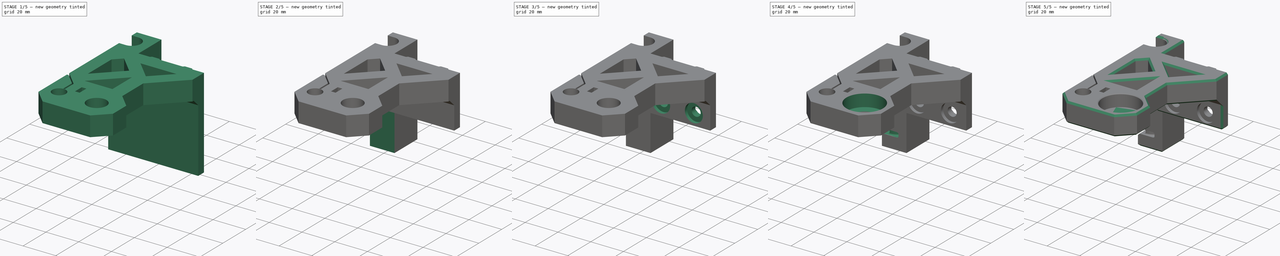
[diagram: build sequence overview — one tinted view per stage of 5, left to right]
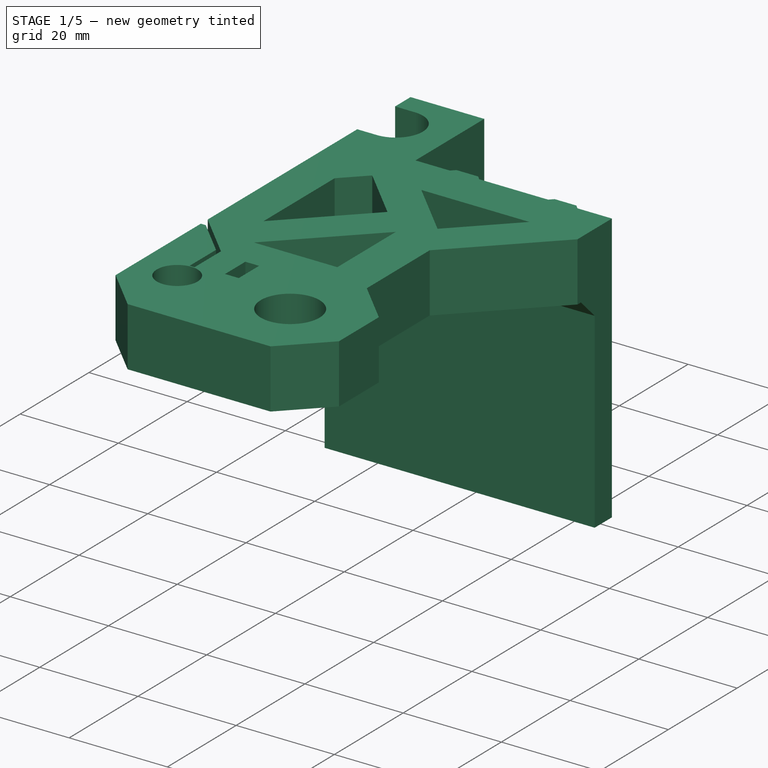
[diagram: stage 1 of 5 — iso view after this stage's code; geometry added in this stage tinted green]
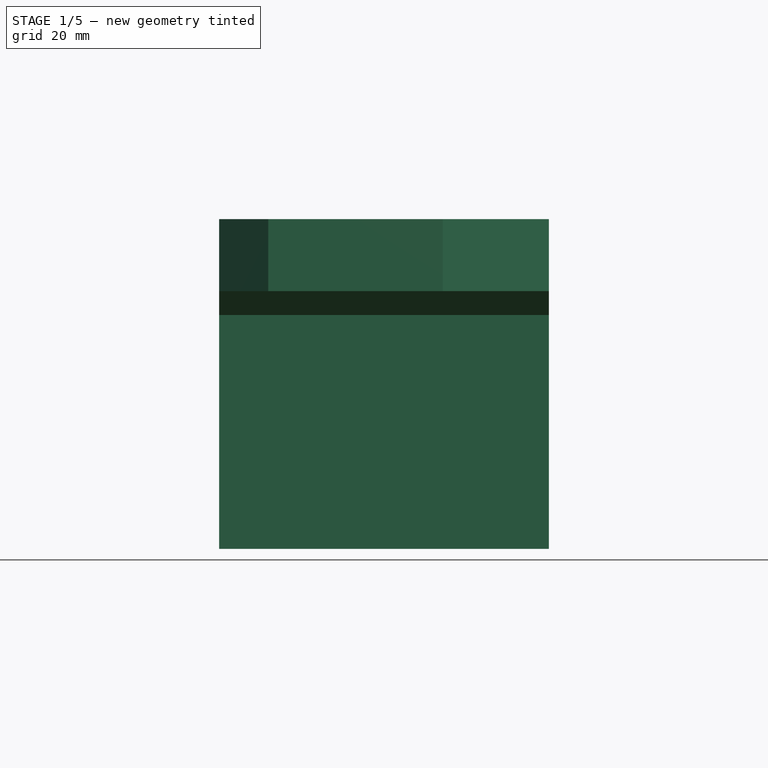
[diagram: stage 1 of 5 — front view after this stage's code; geometry added in this stage tinted green]
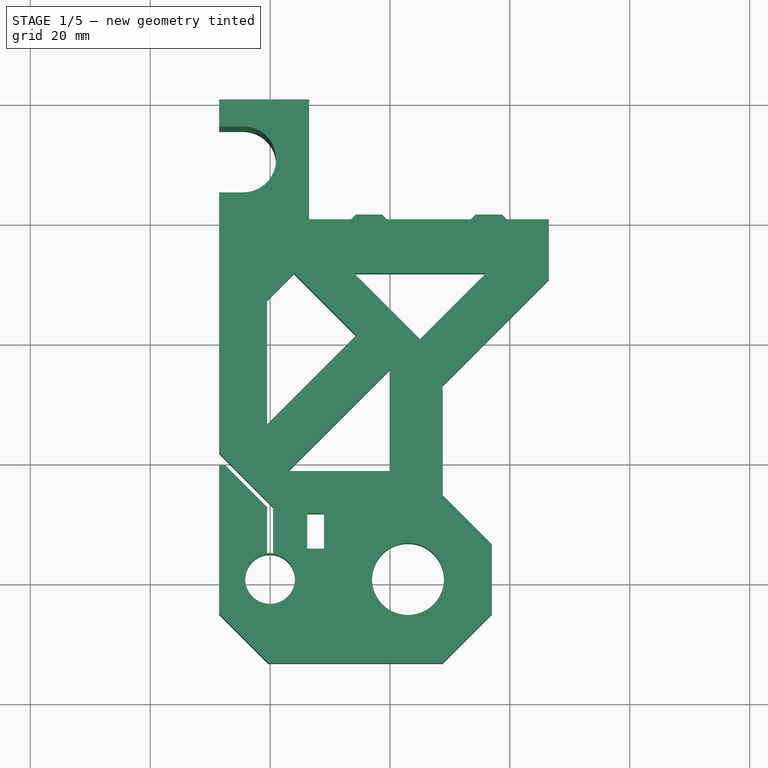
[diagram: stage 1 of 5 — top view after this stage's code; geometry added in this stage tinted green]
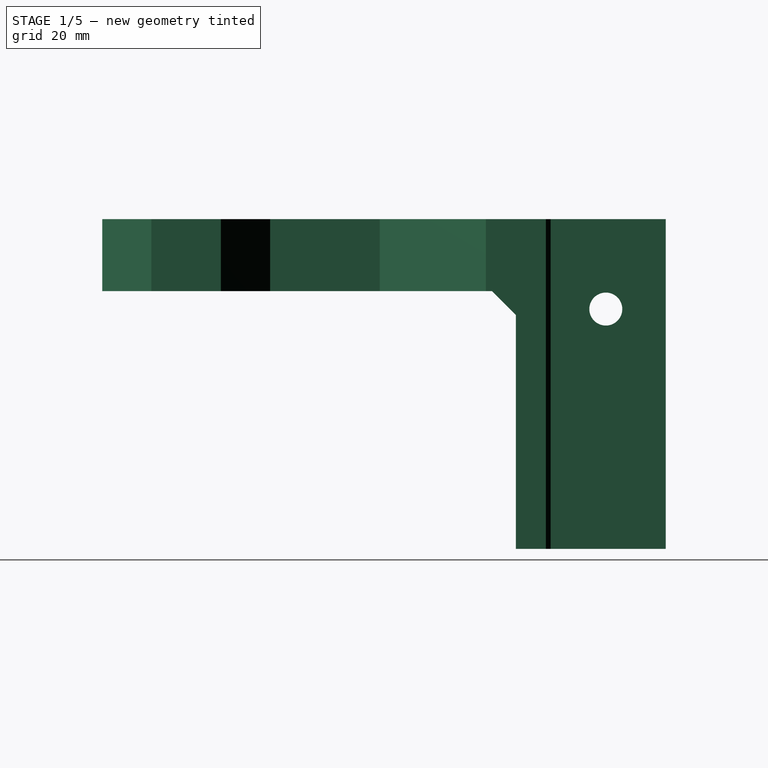
[diagram: stage 1 of 5 — right view after this stage's code; geometry added in this stage tinted green]
FCSTD DOCUMENT  (FreeCAD 0.19R24276 (Git))
Label: _Z_Rod_Holder_L
License: All rights reserved
LicenseURL: http://en.wikipedia.org/wiki/All_rights_reserved
objects: Sketcher::SketchObject×15, PartDesign::Pocket×10, PartDesign::Pad×2, PartDesign::Chamfer×2, PartDesign::Hole×1, PartDesign::SubtractivePipe×1, PartDesign::LinearPattern×1, PartDesign::Body×1
note: 49 computed .brp shape members not serialized (recipe doc carries the construction recipe); baked Part::Feature solids carry a one-line shape summary decoded from their .brp

FEATURE [Sketcher::SketchObject] Sketch
  FullyConstrained = true
  MapMode = 5
  Support = -> [XY_Plane]
  expr: Constraints[85] = Constraints[84] / 2 + 0.2mm
  sketch-geometry (43):
    g0: Circle CenterX=23 CenterY=0 CenterZ=0 NormalX=0 NormalY=0 NormalZ=1 AngleXU=0 Radius=6
    g1: Circle CenterX=23 CenterY=0 CenterZ=0 NormalX=0 NormalY=0 NormalZ=1 AngleXU=0 Radius=14
    g2: LineSegment StartX=-8.5 StartY=-5.79899 StartZ=0 EndX=-0.29899 EndY=-14 EndZ=0
    g3: LineSegment StartX=-0.29899 StartY=-14 StartZ=0 EndX=28.799 EndY=-14 EndZ=0
    g4: LineSegment StartX=28.799 StartY=-14 StartZ=0 EndX=37 EndY=-5.79899 EndZ=0
    g5: LineSegment StartX=37 StartY=-5.79899 StartZ=0 EndX=37 EndY=5.79899 EndZ=0
    g6: LineSegment StartX=37 StartY=5.79899 StartZ=0 EndX=28.799 EndY=14 EndZ=0
    g7: LineSegment StartX=28.799 StartY=32.299 StartZ=0 EndX=46.5 EndY=50 EndZ=0
    g8: LineSegment StartX=46.5 StartY=50 StartZ=0 EndX=46.5 EndY=60 EndZ=0
    g9: LineSegment StartX=46.5 StartY=60 StartZ=0 EndX=39.5 EndY=60 EndZ=0
    g10: LineSegment StartX=6.5 StartY=60 StartZ=0 EndX=6.5 EndY=80 EndZ=0
    g11: LineSegment StartX=1.5 StartY=80 StartZ=0 EndX=1.5 EndY=60 EndZ=0
    g12: LineSegment StartX=13.5 StartY=60 StartZ=0 EndX=14.3 EndY=60.8 EndZ=0
    g13: LineSegment StartX=14.3 StartY=60.8 StartZ=0 EndX=18.7 EndY=60.8 EndZ=0
    g14: LineSegment StartX=18.7 StartY=60.8 StartZ=0 EndX=19.5 EndY=60 EndZ=0
    g15: LineSegment StartX=33.5 StartY=60 StartZ=0 EndX=34.3 EndY=60.8 EndZ=0
    g16: LineSegment StartX=34.3 StartY=60.8 StartZ=0 EndX=38.7 EndY=60.8 EndZ=0
    g17: LineSegment StartX=38.7 StartY=60.8 StartZ=0 EndX=39.5 EndY=60 EndZ=0
    g18: LineSegment StartX=33.5 StartY=60 StartZ=0 EndX=19.5 EndY=60 EndZ=0
    g19: LineSegment StartX=13.5 StartY=60 StartZ=0 EndX=6.5 EndY=60 EndZ=0
    g20: LineSegment StartX=13.5 StartY=60 StartZ=0 EndX=19.5 EndY=60 EndZ=0
    g21: LineSegment StartX=33.5 StartY=60 StartZ=0 EndX=39.5 EndY=60 EndZ=0
    g22: LineSegment StartX=16.5 StartY=60 StartZ=0 EndX=16.5 EndY=60.8 EndZ=0
    g23: LineSegment StartX=36.5 StartY=60 StartZ=0 EndX=36.5 EndY=60.8 EndZ=0
    g24: LineSegment StartX=0.5 StartY=4.32117 StartZ=0 EndX=0.5 EndY=12 EndZ=0
    g25: LineSegment StartX=0.5 StartY=12 StartZ=0 EndX=-8.5 EndY=21 EndZ=0
    g26: LineSegment StartX=-7.5 StartY=19 StartZ=0 EndX=-0.5 EndY=12 EndZ=0
    g27: LineSegment StartX=-0.5 StartY=12 StartZ=0 EndX=-0.5 EndY=4.32117 EndZ=0
    g28: LineSegment StartX=-8.5 StartY=19 StartZ=0 EndX=-8.5 EndY=-5.79899 EndZ=0
    g29: LineSegment StartX=-0.5 StartY=12 StartZ=0 EndX=0.5 EndY=12 EndZ=0
    g30: LineSegment StartX=-8.5 StartY=19 StartZ=0 EndX=-7.5 EndY=19 EndZ=0
    g31: LineSegment StartX=28.799 StartY=14 StartZ=0 EndX=28.799 EndY=32.299 EndZ=0
    g32: Circle CenterX=0 CenterY=0 CenterZ=0 NormalX=0 NormalY=0 NormalZ=1 AngleXU=0 Radius=4.15
    g33: ArcOfCircle CenterX=0 CenterY=0 CenterZ=0 NormalX=0 NormalY=0 NormalZ=1 AngleXU=0 Radius=4.35 StartAngle=1.4556 EndAngle=1.68599
    g34: LineSegment StartX=1.5 StartY=70 StartZ=0 EndX=-4.5 EndY=70 EndZ=0
    g35: ArcOfCircle CenterX=-4.5 CenterY=70 CenterZ=0 NormalX=0 NormalY=0 NormalZ=1 AngleXU=0 Radius=5.5 StartAngle=4.71239 EndAngle=7.85398
    g36: LineSegment StartX=-4.5 StartY=75.5 StartZ=0 EndX=-8.5 EndY=75.5 EndZ=0
    g37: LineSegment StartX=-8.5 StartY=75.5 StartZ=0 EndX=-8.5 EndY=80 EndZ=0
    g38: LineSegment StartX=-8.5 StartY=80 StartZ=0 EndX=6.5 EndY=80 EndZ=0
    g39: LineSegment StartX=-8.5 StartY=64.5 StartZ=0 EndX=-4.5 EndY=64.5 EndZ=0
    g40: LineSegment StartX=-8.5 StartY=64.5 StartZ=0 EndX=-8.5 EndY=21 EndZ=0
    g41: LineSegment StartX=-8.5 StartY=75.5 StartZ=0 EndX=-8.5 EndY=64.5 EndZ=0
    g42: LineSegment StartX=-8.5 StartY=21 StartZ=0 EndX=-8.5 EndY=19 EndZ=0
  constraints (120):
    c: PointOnObject(g0,g-1)
    c: Coincident(g1,g0)
    c: Diameter(g1) = 28
    c: Diameter(g0) = 12
    c: Coincident(g2,g3)
    c: Horizontal(g3)
    c: Coincident(g3,g4)
    c: Coincident(g4,g5)
    c: Vertical(g5)
    c: Coincident(g5,g6)
    c: Coincident(g7,g8)
    c: Vertical(g8)
    c: Coincident(g8,g9)
    c: Horizontal(g9)
    c: Coincident(g19,g10)
    c: Vertical(g10)
    c: Coincident(g28,g2)
    c: Tangent(g3,g1)
    c: Tangent(g4,g1)
    c: Tangent(g5,g1)
    c: Tangent(g6,g1)
    c: Angle(g-1,g7) = 0.785398
    c: DistanceY(g8,g8) = 10
    c: Perpendicular(g6,g7)
    c: Perpendicular(g4,g6)
    c: Perpendicular(g2,g4)
    c: Vertical(g11)
    c: DistanceX(g10,g8) = 40
    c: DistanceX(g11,g10) = 5
    c: Equal(g4,g2)
    c: Coincident(g12,g13)
    c: Coincident(g13,g14)
    c: Coincident(g15,g16)
    c: Coincident(g16,g17)
    c: Horizontal(g13)
    c: PointOnObject(g12,g9)
    c: Coincident(g9,g17)
    c: Coincident(g18,g15)
    c: Tangent(g9,g18)
    c: PointOnObject(g18,g14)
    c: PointOnObject(g19,g12)
    c: Tangent(g18,g19)
    c: Coincident(g20,g12)
    c: Coincident(g20,g14)
    c: Coincident(g21,g15)
    c: Coincident(g21,g9)
    c: PointOnObject(g22,g20)
    c: PointOnObject(g22,g13)
    c: PointOnObject(g23,g21)
    c: PointOnObject(g23,g16)
    c: Symmetric(g12,g14,g22)
    c: Symmetric(g12,g13,g22)
    c: Symmetric(g15,g9,g23)
    c: Symmetric(g16,g15,g23)
    c: Equal(g22,g23)
    c: Equal(g20,g21)
    c: Perpendicular(g14,g12)
    c: Perpendicular(g17,g15)
    c: DistanceX(g20,g20) = 6
    c: DistanceY(g22,g22) = 0.8
    c: DistanceX(g10,g22) = 10
    c: DistanceX(g22,g23) = 20
    c: Vertical(g24)
    c: Coincident(g24,g25)
    c: Coincident(g26,g27)
    c: Vertical(g27)
    c: Coincident(g29,g26)
    c: Coincident(g29,g24)
    c: Parallel(g25,g26)
    c: Parallel(g26,g2)
    c: Horizontal(g30)
    c: Coincident(g26,g30)
    c: Coincident(g30,g28)
    c: Coincident(g31,g6)
    c: Coincident(g31,g7)
    c: Vertical(g31)
    c: Vertical(g3,g6)
    c: DistanceX(g30,g30) = 1
    c: DistanceY(g-1,g11) = 60
    c: DistanceY(g-1,g26) = 12
    c: Coincident(g32,g-1)
    c: Coincident(g33,g32)
    c: Coincident(g33,g27)
    c: Coincident(g33,g24)
    c: Diameter(g32) = 8.3
    c: Radius(g33) = 4.35
    c: DistanceX(g29,g29) = 1
    c: Symmetric(g24,g26,g-2)
    c: DistanceX(g32,g0) = 23
    c: DistanceX(g-1,g11) = 1.5
    c: Horizontal(g11,g10)
    c: DistanceY(g10,g10) = 20
    c: PointOnObject(g34,g11)
    c: Symmetric(g11,g11,g34)
    c: Coincident(g35,g34)
    c: Horizontal(g36)
    c: Coincident(g36,g37)
    c: Coincident(g38,g37)
    c: Coincident(g38,g10)
    c: Horizontal(g38)
    c: PointOnObject(g11,g38)
    c: Vertical(g37)
    c: Coincident(g39,g35)
    c: Horizontal(g39)
    c: Coincident(g36,g35)
    c: Tangent(g36,g35)
    c: Tangent(g35,g39)
    c: DistanceX(g34,g34) = 6
    c: Radius(g35) = 5.5
    c: DistanceX(g38,g38) = 15
    c: Vertical(g28)
    c: Coincident(g40,g39)
    c: Coincident(g40,g25)
    c: Vertical(g40)
    c: Coincident(g41,g36)
    c: Coincident(g41,g39)
    c: Vertical(g41)
    c: Coincident(g42,g25)
    c: Coincident(g42,g28)
    c: Vertical(g42)
FEATURE [PartDesign::Pad] Pad
  AllowMultiFace = false
  Direction = (1,1,1)
  Length = 55
  Length2 = 100
  Profile = -> Sketch
  Reversed = true
  Type = 0
FEATURE [Sketcher::SketchObject] Sketch001
  FullyConstrained = true
  MapMode = 5
  Support = -> [XY_Plane]
  sketch-geometry (16):
    g0: LineSegment StartX=36 StartY=51 StartZ=0 EndX=14 EndY=51 EndZ=0
    g1: LineSegment StartX=36 StartY=51 StartZ=0 EndX=25 EndY=40 EndZ=0
    g2: LineSegment StartX=-0.5 StartY=25.8137 StartZ=0 EndX=-0.5 EndY=46.5 EndZ=0
    g3: LineSegment StartX=0 StartY=8 StartZ=0 EndX=9 EndY=8 EndZ=0
    g4: LineSegment StartX=6.2 StartY=10.95 StartZ=0 EndX=9 EndY=10.95 EndZ=0
    g5: LineSegment StartX=9 StartY=10.95 StartZ=0 EndX=9 EndY=5.05 EndZ=0
    g6: LineSegment StartX=9 StartY=5.05 StartZ=0 EndX=6.2 EndY=5.05 EndZ=0
    g7: LineSegment StartX=6.2 StartY=5.05 StartZ=0 EndX=6.2 EndY=10.95 EndZ=0
    g8: LineSegment StartX=25 StartY=40 StartZ=0 EndX=14 EndY=51 EndZ=0
    g9: LineSegment StartX=4 StartY=51 StartZ=0 EndX=-0.5 EndY=46.5 EndZ=0
    g10: LineSegment StartX=4 StartY=51 StartZ=0 EndX=14.3431 EndY=40.6569 EndZ=0
    g11: LineSegment StartX=14.3431 StartY=40.6569 StartZ=0 EndX=20 EndY=35 EndZ=0
    g12: LineSegment StartX=14.3431 StartY=40.6569 StartZ=0 EndX=-0.5 EndY=25.8137 EndZ=0
    g13: LineSegment StartX=20 StartY=35 StartZ=0 EndX=20 EndY=18 EndZ=0
    g14: LineSegment StartX=20 StartY=18 StartZ=0 EndX=3 EndY=18 EndZ=0
    g15: LineSegment StartX=3 StartY=18 StartZ=0 EndX=20 EndY=35 EndZ=0
  constraints (47):
    c: Horizontal(g0)
    c: Coincident(g1,g0)
    c: Vertical(g2)
    c: Angle(g0,g1) = 0.785398
    c: DistanceX(g0,g0) = 22
    c: DistanceX(g-1,g0) = 36
    c: DistanceY(g-1,g0) = 51
    c: PointOnObject(g3,g-2)
    c: Horizontal(g3)
    c: Coincident(g4,g5)
    c: Coincident(g5,g6)
    c: Coincident(g6,g7)
    c: Coincident(g7,g4)
    c: Horizontal(g4)
    c: Horizontal(g6)
    c: Vertical(g7)
    c: PointOnObject(g3,g5)
    c: Symmetric(g5,g4,g3)
    c: DistanceY(g-1,g3) = 8
    c: DistanceY(g5,g5) = 5.9
    c: DistanceX(g4,g4) = 2.8
    c: DistanceX(g-1,g5) = 9
    c: Coincident(g8,g0)
    c: Perpendicular(g8,g1)
    c: Coincident(g8,g1)
    c: Coincident(g9,g2)
    c: Perpendicular(g9,g8)
    c: Horizontal(g0,g9)
    c: DistanceX(g2,g-1) = 0.5
    c: Coincident(g10,g9)
    c: Parallel(g10,g8)
    c: Coincident(g11,g10)
    c: PointOnObject(g11,g10)
    c: PointOnObject(g11,g1)
    c: Coincident(g12,g10)
    c: Coincident(g12,g2)
    c: Perpendicular(g10,g12)
    c: Distance(g11) = 8
    c: Coincident(g11,g13)
    c: Vertical(g13)
    c: Coincident(g13,g14)
    c: Horizontal(g14)
    c: Coincident(g14,g15)
    c: Coincident(g15,g13)
    c: PointOnObject(g14,g1)
    c: DistanceY(g-1,g13) = 18
    c: DistanceX(g-1,g13) = 20
FEATURE [PartDesign::Pocket] Pocket
  AllowMultiFace = false
  BaseFeature = -> Pad
  Length = 5
  Length2 = 100
  Profile = -> Sketch001
  Type = 1
FEATURE [Sketcher::SketchObject] Sketch002
  AttachmentOffset = pos=(0,0,8.5) rot=(0,0,1;0rad)
  FullyConstrained = true
  MapMode = 5
  Placement = pos=(8.5,-1.9e-15,1.9e-15) rot=(0.57735,0.57735,0.57735;2.0944rad)
  Support = -> [YZ_Plane]
  sketch-geometry (6):
    g0: LineSegment StartX=55 StartY=-56 StartZ=0 EndX=55 EndY=-16 EndZ=0
    g1: LineSegment StartX=51 StartY=-12 StartZ=0 EndX=-15 EndY=-12 EndZ=0
    g2: LineSegment StartX=51 StartY=-12 StartZ=0 EndX=55 EndY=-16 EndZ=0
    g3: Circle CenterX=70 CenterY=-15 CenterZ=0 NormalX=0 NormalY=0 NormalZ=1 AngleXU=0 Radius=2.75
    g4: LineSegment StartX=55 StartY=-56 StartZ=0 EndX=-15 EndY=-56 EndZ=0
    g5: LineSegment StartX=-15 StartY=-56 StartZ=0 EndX=-15 EndY=-12 EndZ=0
  constraints (18):
    c: Horizontal(g1)
    c: Vertical(g0)
    c: Coincident(g0,g2)
    c: Coincident(g1,g2)
    c: Diameter(g3) = 5.5
    c: Coincident(g4,g5)
    c: Horizontal(g4)
    c: Vertical(g5)
    c: Coincident(g0,g4)
    c: DistanceY(g3,g-1) = 15
    c: DistanceY(g4,g-1) = 56
    c: DistanceX(g4,g-1) = 15
    c: DistanceX(g-1,g3) = 70
    c: DistanceX(g-1,g0) = 55
    c: Coincident(g5,g1)
    c: DistanceX(g1,g0) = 4
    c: Angle(g2,g0) = 2.35619
    c: DistanceY(g1,g-1) = 12
FEATURE [PartDesign::Pocket] Pocket001
  AllowMultiFace = false
  BaseFeature = -> Pocket
  Length = 5
  Length2 = 100
  Midplane = true
  Profile = -> Sketch002
  Type = 1
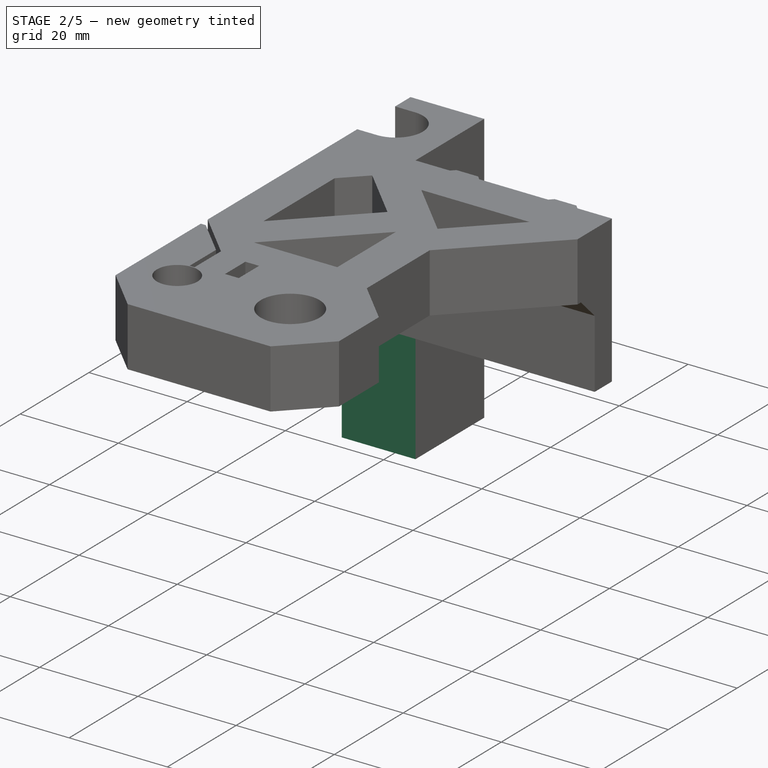
[diagram: stage 2 of 5 — iso view after this stage's code; geometry added in this stage tinted green]
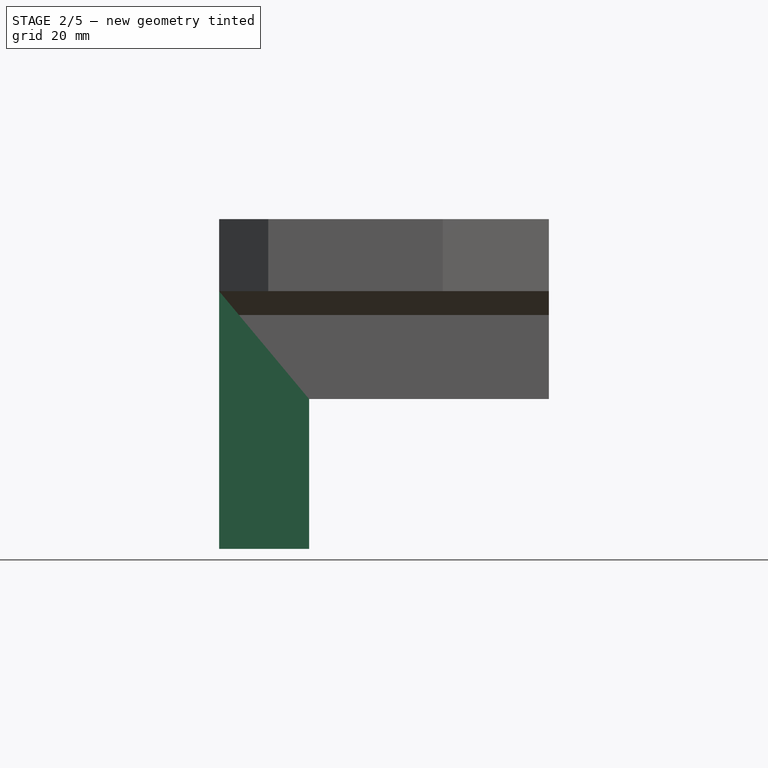
[diagram: stage 2 of 5 — front view after this stage's code; geometry added in this stage tinted green]
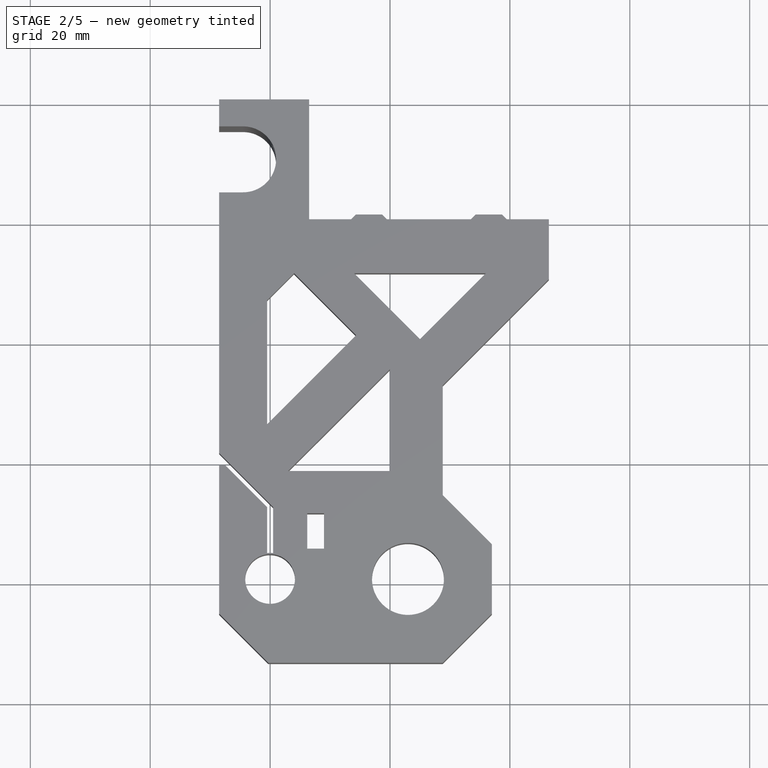
[diagram: stage 2 of 5 — top view after this stage's code; geometry added in this stage tinted green]
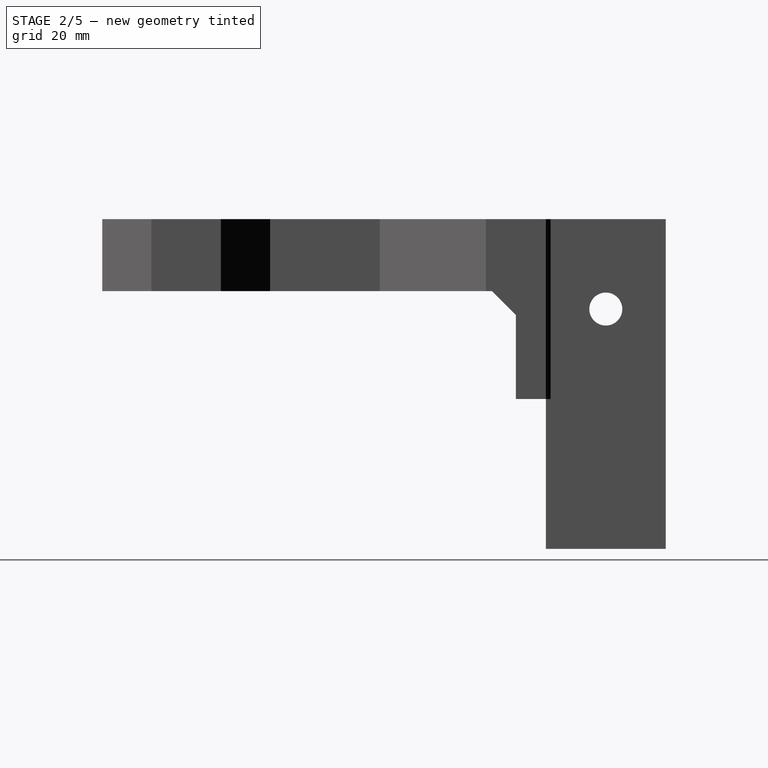
[diagram: stage 2 of 5 — right view after this stage's code; geometry added in this stage tinted green]
FEATURE [Sketcher::SketchObject] Sketch003
  AttachmentOffset = pos=(0,0,-8.5) rot=(1,0,0;3.14159rad)
  FullyConstrained = true
  MapMode = 5
  Placement = pos=(-8.5,1.9e-15,-1.9e-15) rot=(0.57735,0.57735,-0.57735;4.18879rad)
  Support = -> [YZ_Plane]
  sketch-geometry (1):
    g0: Circle CenterX=8 CenterY=6 CenterZ=0 NormalX=0 NormalY=0 NormalZ=1 AngleXU=0 Radius=1.75
  constraints (3):
    c: DistanceX(g-1,g0) = 8
    c: Diameter(g0) = 3.5
    c: DistanceY(g-1,g0) = 6
FEATURE [Sketcher::SketchObject] Sketch004
  AttachmentOffset = pos=(0,0,-8.5) rot=(1,0,0;3.14159rad)
  FullyConstrained = true
  MapMode = 5
  Placement = pos=(-8.5,1.9e-15,-1.9e-15) rot=(0.57735,0.57735,-0.57735;4.18879rad)
  Support = -> [YZ_Plane]
  sketch-geometry (1):
    g0: Circle CenterX=8 CenterY=6 CenterZ=0 NormalX=0 NormalY=0 NormalZ=1 AngleXU=0 Radius=3
  constraints (3):
    c: DistanceX(g-1,g0) = 8
    c: DistanceY(g-1,g0) = 6
    c: Diameter(g0) = 6
FEATURE [Sketcher::SketchObject] Sketch005
  AttachmentOffset = pos=(0,0,-55) rot=(0,0,1;0rad)
  FullyConstrained = true
  MapMode = 5
  Placement = pos=(0,55,1.22e-14) rot=(1,0,0;1.5708rad)
  Support = -> [XZ_Plane]
  sketch-geometry (3):
    g0: Circle CenterX=16.5 CenterY=-23 CenterZ=0 NormalX=0 NormalY=0 NormalZ=1 AngleXU=0 Radius=2.75
    g1: Circle CenterX=36.5 CenterY=-23 CenterZ=0 NormalX=0 NormalY=0 NormalZ=1 AngleXU=0 Radius=2.75
    g2: LineSegment StartX=16.5 StartY=-23 StartZ=0 EndX=36.5 EndY=-23 EndZ=0
  constraints (8):
    c: Coincident(g2,g0)
    c: Coincident(g2,g1)
    c: Horizontal(g2)
    c: DistanceX(g2,g2) = 20
    c: DistanceX(g-1,g1) = 36.5
    c: DistanceY(g0,g-1) = 23
    c: Equal(g0,g1)
    c: Diameter(g1) = 5.5
FEATURE [Sketcher::SketchObject] Sketch006
  AttachmentOffset = pos=(0,0,-55) rot=(0,0,1;0rad)
  FullyConstrained = true
  MapMode = 5
  Placement = pos=(0,55,1.22e-14) rot=(1,0,0;1.5708rad)
  Support = -> [XZ_Plane]
  sketch-geometry (3):
    g0: Circle CenterX=16.5 CenterY=-23 CenterZ=0 NormalX=0 NormalY=0 NormalZ=1 AngleXU=0 Radius=5.5
    g1: Circle CenterX=36.5 CenterY=-23 CenterZ=0 NormalX=0 NormalY=0 NormalZ=1 AngleXU=0 Radius=5.5
    g2: LineSegment StartX=16.5 StartY=-23 StartZ=0 EndX=36.5 EndY=-23 EndZ=0
  constraints (8):
    c: Coincident(g2,g0)
    c: Coincident(g2,g1)
    c: Horizontal(g2)
    c: DistanceX(g-1,g1) = 36.5
    c: DistanceX(g2,g2) = 20
    c: DistanceY(g0,g-1) = 23
    c: Equal(g0,g1)
    c: Diameter(g1) = 11
FEATURE [Sketcher::SketchObject] Sketch007
  AttachmentOffset = pos=(0,0,-8.5) rot=(1,0,0;3.14159rad)
  FullyConstrained = true
  MapMode = 5
  Placement = pos=(-8.5,1.9e-15,-1.9e-15) rot=(0.57735,0.57735,-0.57735;4.18879rad)
  Support = -> [YZ_Plane]
  sketch-geometry (1):
    g0: Circle CenterX=70 CenterY=15 CenterZ=0 NormalX=0 NormalY=0 NormalZ=1 AngleXU=0 Radius=5.5
  constraints (3):
    c: DistanceY(g-1,g0) = 15
    c: DistanceX(g-1,g0) = 70
    c: Diameter(g0) = 11
FEATURE [Sketcher::SketchObject] Sketch009
  FullyConstrained = true
  MapMode = 5
  Support = -> [XY_Plane]
  sketch-geometry (1):
    g0: Circle CenterX=23 CenterY=0 CenterZ=0 NormalX=0 NormalY=0 NormalZ=1 AngleXU=0 Radius=11.175
  constraints (3):
    c: Diameter(g0) = 22.35
    c: DistanceX(g-1,g0) = 23
    c: PointOnObject(g0,g-1)
FEATURE [Sketcher::SketchObject] Sketch010
  AttachmentOffset = pos=(0,0,-55) rot=(1,0,0;3.14159rad)
  FullyConstrained = true
  MapMode = 5
  Placement = pos=(0,0,-55) rot=(1,0,0;3.14159rad)
  Support = -> [XY_Plane]
  sketch-geometry (6):
    g0: LineSegment StartX=-9 StartY=-51 StartZ=0 EndX=-9 EndY=-60 EndZ=0
    g1: LineSegment StartX=-9 StartY=-60 StartZ=0 EndX=6.52 EndY=-60 EndZ=0
    g2: LineSegment StartX=6.52 StartY=-60 StartZ=0 EndX=6.52 EndY=-60.8 EndZ=0
    g3: LineSegment StartX=6.52 StartY=-60.8 StartZ=0 EndX=47 EndY=-60.8 EndZ=0
    g4: LineSegment StartX=47 StartY=-60.8 StartZ=0 EndX=47 EndY=-51 EndZ=0
    g5: LineSegment StartX=47 StartY=-51 StartZ=0 EndX=-9 EndY=-51 EndZ=0
  constraints (18):
    c: Vertical(g0)
    c: Coincident(g0,g1)
    c: Horizontal(g1)
    c: Coincident(g1,g2)
    c: Coincident(g2,g3)
    c: Horizontal(g3)
    c: Coincident(g3,g4)
    c: Vertical(g4)
    c: Coincident(g4,g5)
    c: Coincident(g5,g0)
    c: Horizontal(g5)
    c: DistanceX(g0,g-1) = 9
    c: DistanceX(g-1,g3) = 47
    c: Vertical(g2)
    c: DistanceX(g-1,g2) = 6.52
    c: DistanceY(g0,g-1) = 60
    c: DistanceY(g0,g0) = 9
    c: DistanceY(g4,g4) = 9.8
FEATURE [PartDesign::Pocket] Pocket007
  AllowMultiFace = false
  BaseFeature = -> Pocket001
  Length = 25
  Length2 = 100
  Profile = -> Sketch010
  Type = 0
FEATURE [Sketcher::SketchObject] Sketch011
  FullyConstrained = true
  MapMode = 5
  Placement = pos=(0,0,0) rot=(1,0,0;1.5708rad)
  Support = -> [XZ_Plane]
  sketch-geometry (3):
    g0: LineSegment StartX=-8.52 StartY=-12 StartZ=0 EndX=6.5 EndY=-30 EndZ=0
    g1: LineSegment StartX=6.5 StartY=-30 StartZ=0 EndX=-8.52 EndY=-30 EndZ=0
    g2: LineSegment StartX=-8.52 StartY=-30 StartZ=0 EndX=-8.52 EndY=-12 EndZ=0
  constraints (9):
    c: Horizontal(g1)
    c: Coincident(g1,g2)
    c: Coincident(g2,g0)
    c: Vertical(g2)
    c: DistanceY(g1,g-1) = 30
    c: DistanceY(g0,g-1) = 12
    c: DistanceX(g0,g-1) = 8.52
    c: DistanceX(g1,g1) = 15.02
    c: Coincident(g1,g0)
FEATURE [PartDesign::Pocket] Pocket008
  AllowMultiFace = false
  BaseFeature = -> Pocket007
  Length = 60
  Length2 = 100
  Profile = -> Sketch011
  Type = 0
FEATURE [PartDesign::Hole] Hole
  AllowMultiFace = false
  BaseFeature = -> Pocket008
  Depth = 20
  DepthType = 0
  Diameter = 3.5
  DrillForDepth = false
  DrillPoint = 1
  DrillPointAngle = 90
  HoleCutCountersinkAngle = 90
  HoleCutCustomValues = false
  HoleCutDepth = 0
  HoleCutDiameter = 0
  HoleCutType = 0
  ModelActualThread = false
  Profile = -> Sketch003
  Tapered = false
  TaperedAngle = 90
  ThreadAngle = 0
  ThreadClass = 0
  ThreadCutOffInner = 0
  ThreadCutOffOuter = 0
  ThreadDirection = 0
  ThreadFit = 0
  ThreadPitch = 0
  ThreadSize = 0
  ThreadType = 0
  Threaded = false
FEATURE [PartDesign::Pocket] Pocket002
  AllowMultiFace = false
  BaseFeature = -> Hole
  Length = 3.5
  Length2 = 100
  Profile = -> Sketch004
  Type = 0
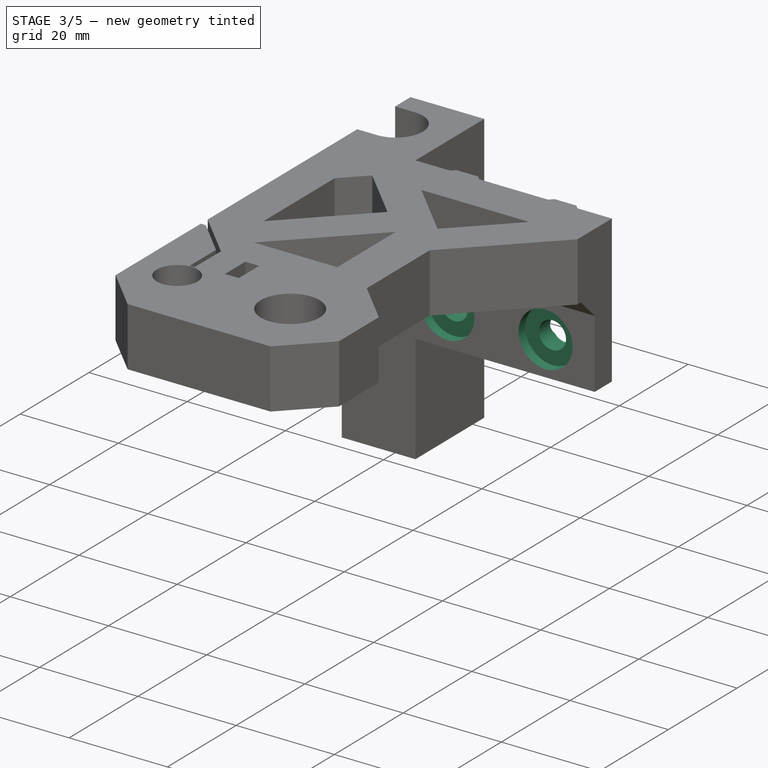
[diagram: stage 3 of 5 — iso view after this stage's code; geometry added in this stage tinted green]
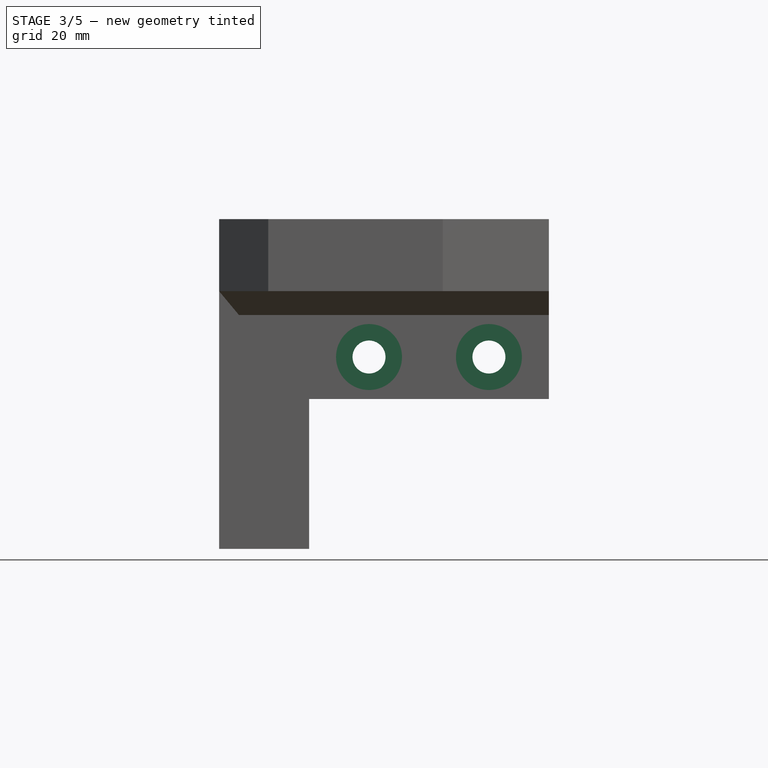
[diagram: stage 3 of 5 — front view after this stage's code; geometry added in this stage tinted green]
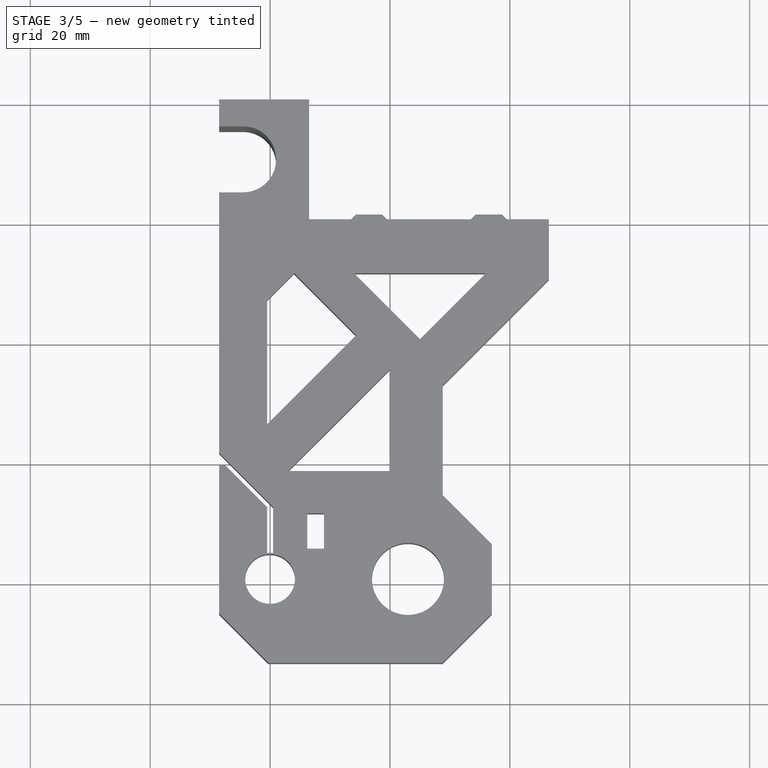
[diagram: stage 3 of 5 — top view after this stage's code; geometry added in this stage tinted green]
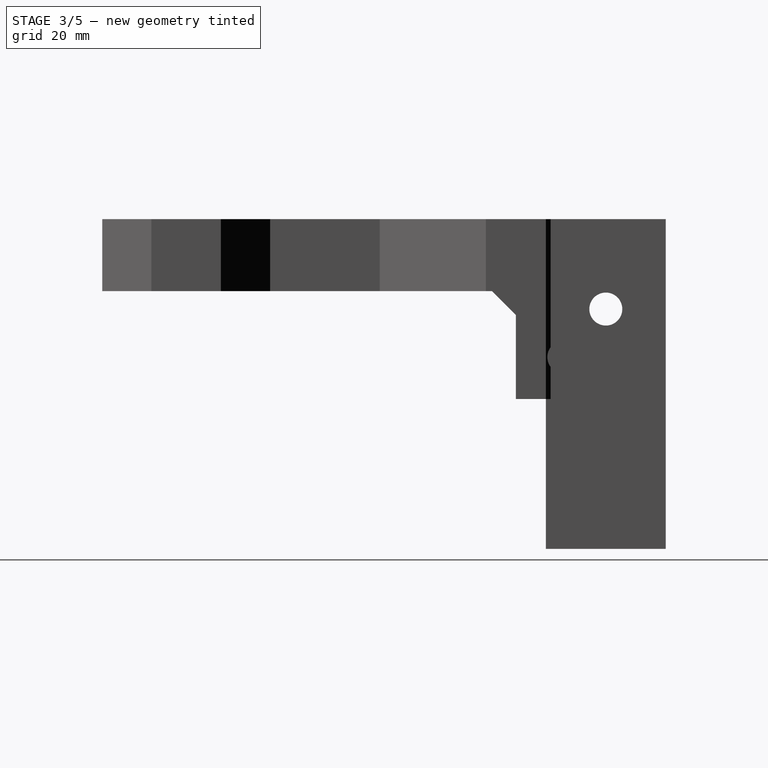
[diagram: stage 3 of 5 — right view after this stage's code; geometry added in this stage tinted green]
FEATURE [PartDesign::Pocket] Pocket003
  AllowMultiFace = false
  BaseFeature = -> Pocket002
  Length = 5
  Length2 = 100
  Profile = -> Sketch005
  Type = 1
FEATURE [PartDesign::Pocket] Pocket004
  AllowMultiFace = false
  BaseFeature = -> Pocket003
  Length = 2
  Length2 = 100
  Profile = -> Sketch006
  Type = 0
FEATURE [PartDesign::Pocket] Pocket005
  AllowMultiFace = false
  BaseFeature = -> Pocket004
  Length = 12
  Length2 = 100
  Profile = -> Sketch007
  Type = 0
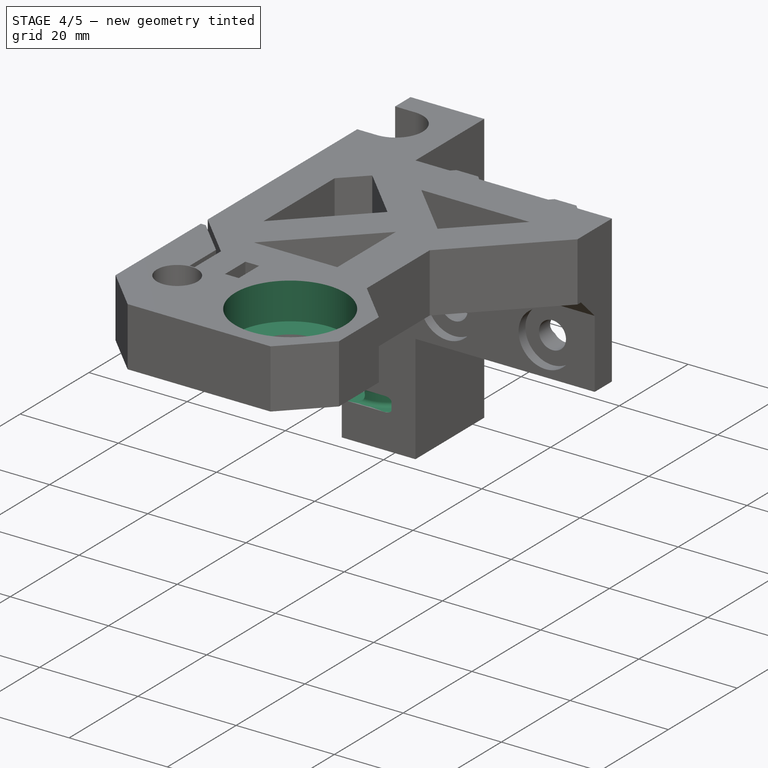
[diagram: stage 4 of 5 — iso view after this stage's code; geometry added in this stage tinted green]
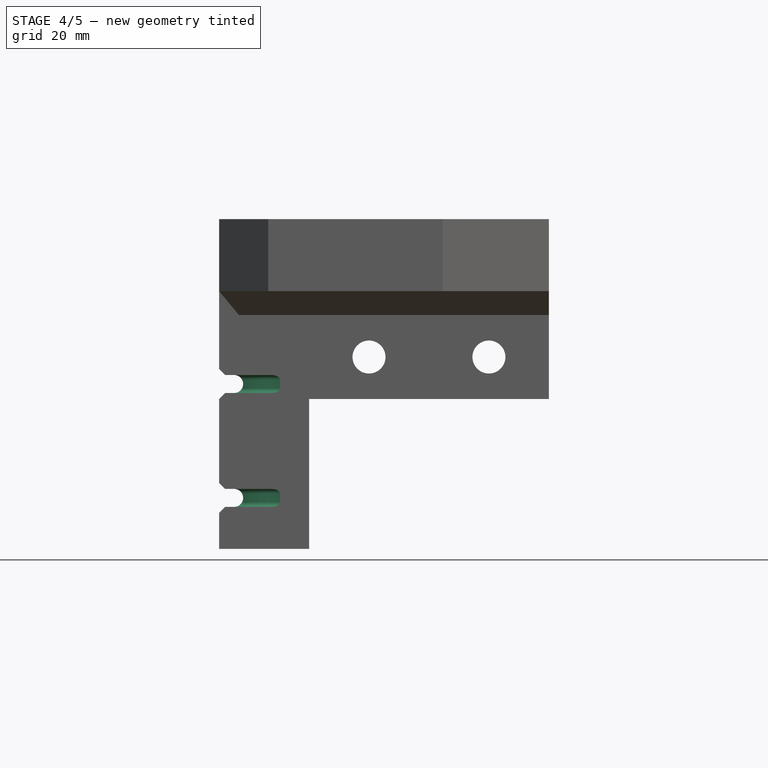
[diagram: stage 4 of 5 — front view after this stage's code; geometry added in this stage tinted green]
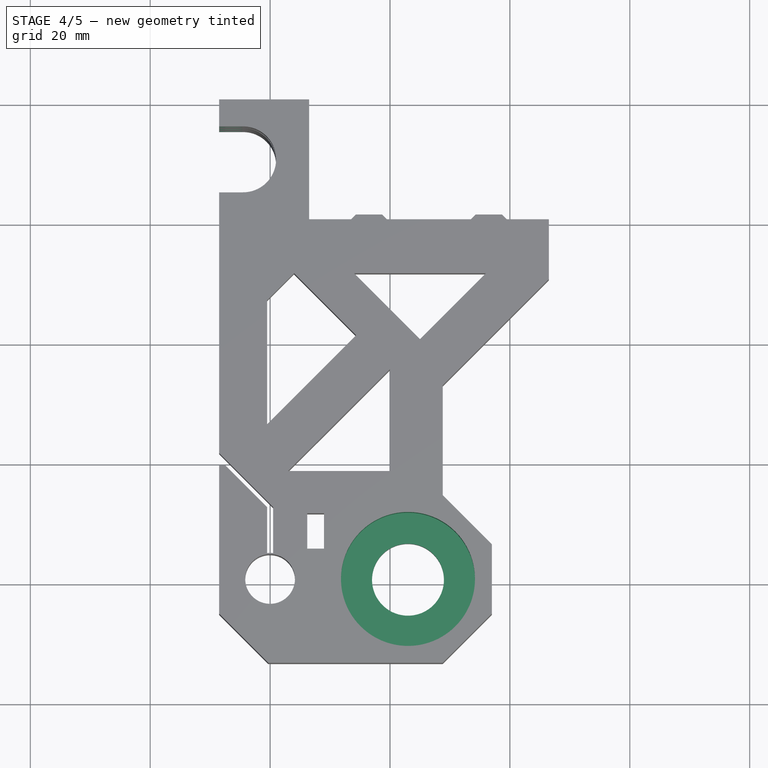
[diagram: stage 4 of 5 — top view after this stage's code; geometry added in this stage tinted green]
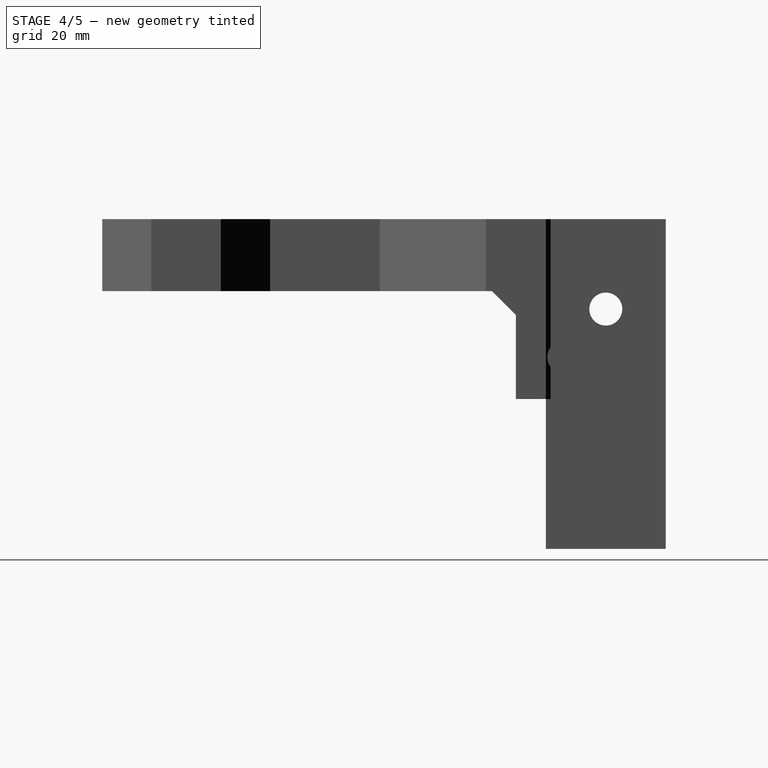
[diagram: stage 4 of 5 — right view after this stage's code; geometry added in this stage tinted green]
FEATURE [PartDesign::Pocket] Pocket006
  AllowMultiFace = false
  BaseFeature = -> Pocket005
  Length = 7.5
  Length2 = 100
  Profile = -> Sketch009
  Type = 0
FEATURE [Sketcher::SketchObject] Sketch012
  AttachmentOffset = pos=(0,0,-70) rot=(0,0,1;0rad)
  FullyConstrained = true
  MapMode = 5
  Placement = pos=(0,70,1.55e-14) rot=(1,0,0;1.5708rad)
  Support = -> [XZ_Plane]
  sketch-geometry (23):
    g0: LineSegment StartX=-9.5 StartY=-6 StartZ=0 EndX=-9.5 EndY=-49 EndZ=0
    g1: LineSegment StartX=-7.5 StartY=-48 StartZ=0 EndX=-6 EndY=-48 EndZ=0
    g2: ArcOfCircle CenterX=-6 CenterY=-46.5 CenterZ=0 NormalX=0 NormalY=0 NormalZ=1 AngleXU=0 Radius=1.5 StartAngle=4.71239 EndAngle=7.85398
    g3: LineSegment StartX=-6 StartY=-45 StartZ=0 EndX=-7.5 EndY=-45 EndZ=0
    g4: LineSegment StartX=-7.5 StartY=-45 StartZ=0 EndX=-8.5 EndY=-44 EndZ=0
    g5: LineSegment StartX=-8.5 StartY=-44 StartZ=0 EndX=-8.5 EndY=-30 EndZ=0
    g6: LineSegment StartX=-8.5 StartY=-30 StartZ=0 EndX=-7.5 EndY=-29 EndZ=0
    g7: LineSegment StartX=-7.5 StartY=-29 StartZ=0 EndX=-6 EndY=-29 EndZ=0
    g8: ArcOfCircle CenterX=-6 CenterY=-27.5 CenterZ=0 NormalX=0 NormalY=0 NormalZ=1 AngleXU=0 Radius=1.5 StartAngle=4.71239 EndAngle=7.85398
    g9: LineSegment StartX=-6 StartY=-26 StartZ=0 EndX=-7.5 EndY=-26 EndZ=0
    g10: LineSegment StartX=-7.5 StartY=-26 StartZ=0 EndX=-8.5 EndY=-25 EndZ=0
    g11: LineSegment StartX=-8.5 StartY=-25 StartZ=0 EndX=-8.5 EndY=-11 EndZ=0
    g12: LineSegment StartX=-8.5 StartY=-11 StartZ=0 EndX=-7.5 EndY=-10 EndZ=0
    g13: LineSegment StartX=-7.5 StartY=-10 StartZ=0 EndX=-6 EndY=-10 EndZ=0
    g14: ArcOfCircle CenterX=-6 CenterY=-8.5 CenterZ=0 NormalX=0 NormalY=0 NormalZ=1 AngleXU=0 Radius=1.5 StartAngle=4.71239 EndAngle=7.85398
    g15: LineSegment StartX=-6 StartY=-7 StartZ=0 EndX=-7.5 EndY=-7 EndZ=0
    g16: LineSegment StartX=-6 StartY=-46.5 StartZ=0 EndX=-9.5 EndY=-46.5 EndZ=0
    g17: LineSegment StartX=-6 StartY=-27.5 StartZ=0 EndX=-9.5 EndY=-27.5 EndZ=0
    g18: LineSegment StartX=-6 StartY=-8.5 StartZ=0 EndX=-9.5 EndY=-8.5 EndZ=0
    g19: LineSegment StartX=-9.5 StartY=-49 StartZ=0 EndX=-8.5 EndY=-49 EndZ=0
    g20: LineSegment StartX=-8.5 StartY=-49 StartZ=0 EndX=-7.5 EndY=-48 EndZ=0
    g21: LineSegment StartX=-9.5 StartY=-6 StartZ=0 EndX=-8.5 EndY=-6 EndZ=0
    g22: LineSegment StartX=-8.5 StartY=-6 StartZ=0 EndX=-7.5 EndY=-7 EndZ=0
  constraints (58):
    c: Vertical(g0)
    c: Tangent(g1,g2) = -1.5708
    c: Tangent(g2,g3) = -1.5708
    c: Coincident(g3,g4)
    c: Coincident(g4,g5)
    c: Vertical(g5)
    c: Coincident(g5,g6)
    c: Coincident(g6,g7)
    c: Tangent(g7,g8) = -1.5708
    c: Tangent(g8,g9) = -1.5708
    c: Coincident(g9,g10)
    c: Coincident(g10,g11)
    c: Vertical(g11)
    c: Coincident(g11,g12)
    c: Coincident(g12,g13)
    c: Horizontal(g13)
    c: Tangent(g13,g14) = -1.5708
    c: Tangent(g14,g15) = -1.5708
    c: Horizontal(g15)
    c: Horizontal(g7)
    c: Horizontal(g1)
    c: Horizontal(g3)
    c: Coincident(g16,g2)
    c: PointOnObject(g16,g0)
    c: Coincident(g17,g8)
    c: Coincident(g18,g14)
    c: Symmetric(g0,g0,g17)
    c: Symmetric(g16,g18,g17)
    c: Symmetric(g12,g15,g18)
    c: Symmetric(g6,g9,g17)
    c: Symmetric(g1,g3,g16)
    c: Coincident(g0,g19)
    c: Horizontal(g19)
    c: Coincident(g19,g20)
    c: Coincident(g20,g1)
    c: Symmetric(g19,g4,g16)
    c: Coincident(g0,g21)
    c: Horizontal(g21)
    c: Coincident(g21,g22)
    c: Coincident(g22,g15)
    c: Symmetric(g11,g21,g18)
    c: Symmetric(g5,g10,g17)
    c: PointOnObject(g17,g0)
    c: DistanceX(g0,g-1) = 9.5
    c: Equal(g14,g8)
    c: Equal(g8,g2)
    c: Radius(g2) = 1.5
    c: Equal(g16,g17)
    c: Equal(g17,g18)
    c: DistanceX(g19,g19) = 1
    c: Perpendicular(g10,g6)
    c: Perpendicular(g22,g12)
    c: Equal(g13,g9)
    c: Equal(g7,g3)
    c: DistanceX(g0,g2) = 3.5
    c: DistanceX(g3,g3) = 1.5
    c: DistanceY(g16,g18) = 38
    c: DistanceY(g8,g-1) = 27.5
FEATURE [PartDesign::Pocket] Pocket009
  AllowMultiFace = false
  BaseFeature = -> Pocket006
  Length = 20
  Length2 = 100
  Midplane = true
  Profile = -> Sketch012
  Type = 0
FEATURE [Sketcher::SketchObject] Sketch014
  AttachmentOffset = pos=(0,0,-8.5) rot=(0,0,1;0rad)
  FullyConstrained = true
  MapMode = 5
  Placement = pos=(0,0,-8.5) rot=(0,0,1;0rad)
  Support = -> [XY_Plane]
  sketch-geometry (8):
    g0: LineSegment StartX=-8.6 StartY=80.5 StartZ=0 EndX=-4.5 EndY=80.5 EndZ=0
    g1: ArcOfCircle CenterX=-4.5 CenterY=70 CenterZ=0 NormalX=0 NormalY=0 NormalZ=1 AngleXU=0 Radius=10.5 StartAngle=4.71239 EndAngle=4.8442
    g2: LineSegment StartX=-4.5 StartY=59.5 StartZ=0 EndX=-8.6 EndY=59.5 EndZ=0
    g3: ArcOfCircle CenterX=-4.5 CenterY=70 CenterZ=0 NormalX=0 NormalY=0 NormalZ=1 AngleXU=0 Radius=10.5 StartAngle=1.43899 EndAngle=1.5708
    g4: ArcOfCircle CenterX=-22 CenterY=70 CenterZ=0 NormalX=0 NormalY=0 NormalZ=1 AngleXU=0 Radius=26 StartAngle=6.14506 EndAngle=6.42131
    g5: LineSegment StartX=-22 StartY=70 StartZ=0 EndX=-4.5 EndY=70 EndZ=0
    g6: ArcOfCircle CenterX=-4.17143 CenterY=72.4783 CenterZ=0 NormalX=0 NormalY=0 NormalZ=1 AngleXU=0 Radius=8 StartAngle=0.138122 EndAngle=1.43899
    g7: ArcOfCircle CenterX=-4.17143 CenterY=67.5217 CenterZ=0 NormalX=0 NormalY=0 NormalZ=1 AngleXU=0 Radius=8 StartAngle=4.8442 EndAngle=6.14506
  constraints (28):
    c: Horizontal(g0)
    c: Coincident(g3,g0)
    c: Coincident(g2,g1)
    c: Horizontal(g2)
    c: DistanceY(g-1,g1) = 70
    c: Radius(g1) = 10.5
    c: Tangent(g0,g1)
    c: Tangent(g1,g2)
    c: DistanceX(g0,g0) = 4.1
    c: Equal(g0,g2)
    c: DistanceX(g0,g-1) = 4.5
    c: Equal(g1,g3)
    c: Coincident(g1,g3)
    c: Coincident(g5,g4)
    c: Coincident(g5,g1)
    c: Horizontal(g5)
    c: Radius(g4) = 26
    c: Coincident(g6,g3)
    c: Coincident(g6,g4)
    c: Coincident(g7,g1)
    c: Coincident(g7,g4)
    c: Equal(g7,g6)
    c: Tangent(g3,g6)
    c: Tangent(g6,g4)
    c: Tangent(g4,g7)
    c: Tangent(g7,g1)
    c: DistanceX(g4,g1) = 17.5
    c: Radius(g6) = 8
FEATURE [Sketcher::SketchObject] Sketch013
  AttachmentOffset = pos=(0,0,-8.6) rot=(0,0,1;0rad)
  ExternalGeometry = -> [Sketch014]
  FullyConstrained = true
  MapMode = 5
  Placement = pos=(-8.6,1.9e-15,-1.9e-15) rot=(0.57735,0.57735,0.57735;2.0944rad)
  Support = -> [YZ_Plane]
  sketch-geometry (10):
    g0: LineSegment StartX=79.8 StartY=-7 StartZ=0 EndX=81.2 EndY=-7 EndZ=0
    g1: LineSegment StartX=82 StartY=-7.8 StartZ=0 EndX=82 EndY=-9.2 EndZ=0
    g2: LineSegment StartX=81.2 StartY=-10 StartZ=0 EndX=79.8 EndY=-10 EndZ=0
    g3: LineSegment StartX=79 StartY=-9.2 StartZ=0 EndX=79 EndY=-7.8 EndZ=0
    g4: ArcOfCircle CenterX=79.8 CenterY=-7.8 CenterZ=0 NormalX=0 NormalY=0 NormalZ=1 AngleXU=0 Radius=0.8 StartAngle=1.5708 EndAngle=3.14159
    g5: ArcOfCircle CenterX=81.2 CenterY=-7.8 CenterZ=0 NormalX=0 NormalY=0 NormalZ=1 AngleXU=0 Radius=0.8 StartAngle=2.061e-13 EndAngle=1.5708
    g6: ArcOfCircle CenterX=81.2 CenterY=-9.2 CenterZ=0 NormalX=0 NormalY=0 NormalZ=1 AngleXU=0 Radius=0.8 StartAngle=4.71239 EndAngle=6.28319
    g7: ArcOfCircle CenterX=79.8 CenterY=-9.2 CenterZ=0 NormalX=0 NormalY=0 NormalZ=1 AngleXU=0 Radius=0.8 StartAngle=3.14159 EndAngle=4.71239
    g8: LineSegment StartX=79.8 StartY=-7.8 StartZ=0 EndX=81.2 EndY=-9.2 EndZ=0
    g9: GeomPoint X=80.5 Y=-8.5 Z=0
  constraints (22):
    c: Horizontal(g0)
    c: Horizontal(g2)
    c: Vertical(g1)
    c: Vertical(g3)
    c: Tangent(g3,g4) = 1.5708
    c: Tangent(g0,g4) = 1.5708
    c: Tangent(g0,g5) = 1.5708
    c: Tangent(g1,g5) = 1.5708
    c: Tangent(g1,g6) = 1.5708
    c: Tangent(g2,g6) = 1.5708
    c: Tangent(g2,g7) = 1.5708
    c: Tangent(g3,g7) = 1.5708
    c: Equal(g4,g5)
    c: Equal(g5,g6)
    c: Equal(g6,g7)
    c: Radius(g6) = 0.8
    c: DistanceX(g3,g1) = 3
    c: Coincident(g8,g4)
    c: Coincident(g8,g6)
    c: Symmetric(g4,g6,g9)
    c: Coincident(g9,g-3)
    c: DistanceY(g2,g0) = 3
FEATURE [PartDesign::SubtractivePipe] SubtractivePipe
  AllowMultiFace = false
  AuxilleryCurvelinear = true
  AuxillerySpineTangent = false
  BaseFeature = -> Pocket009
  Binormal = (0,0,0)
  Mode = 2
  Profile = -> Sketch013
  Spine = -> Sketch014
  SpineTangent = false
  Transformation = 0
  Transition = 0
FEATURE [PartDesign::LinearPattern] LinearPattern
  BaseFeature = -> SubtractivePipe
  Direction = -> Sketch013 [V_Axis]
  Length = 38
  Occurrences = 3
  Originals = -> [SubtractivePipe]
  Refine = true
  Reversed = true
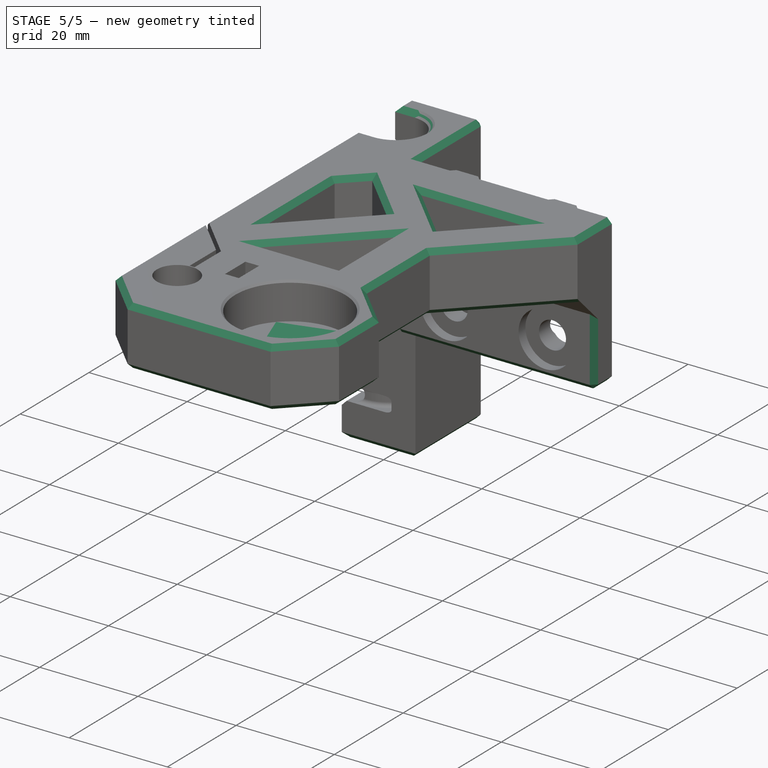
[diagram: stage 5 of 5 — iso view after this stage's code; geometry added in this stage tinted green]
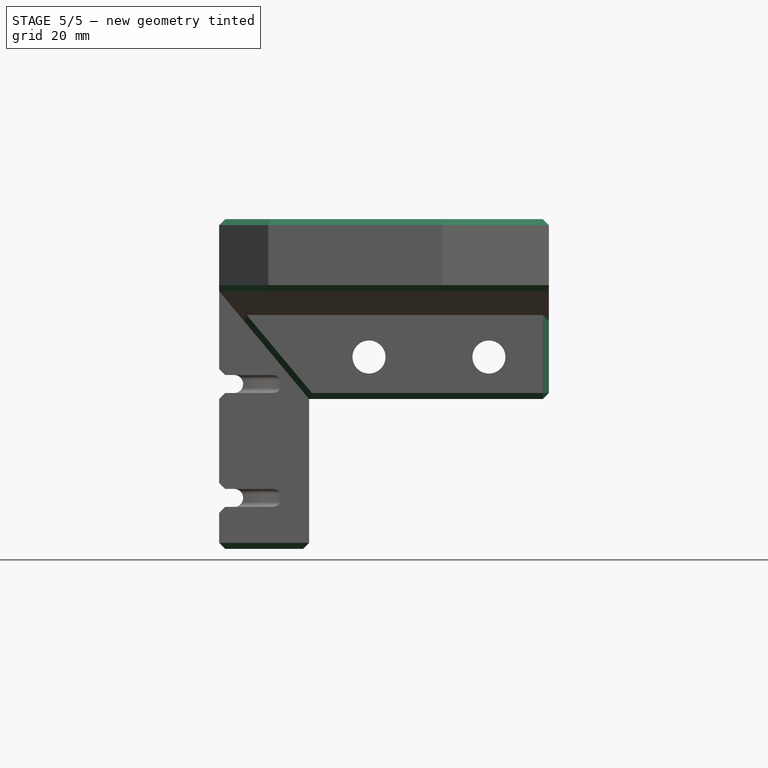
[diagram: stage 5 of 5 — front view after this stage's code; geometry added in this stage tinted green]
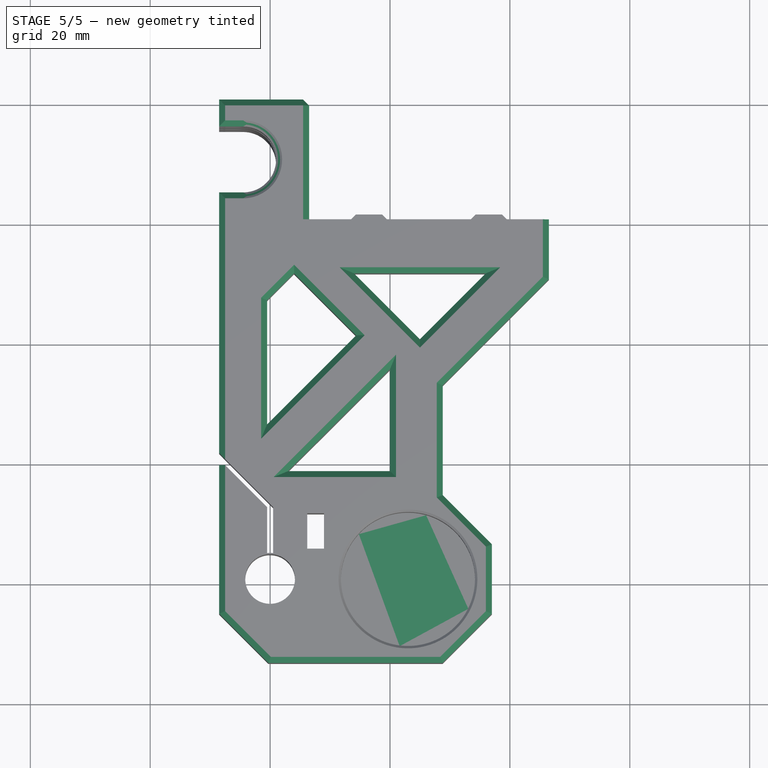
[diagram: stage 5 of 5 — top view after this stage's code; geometry added in this stage tinted green]
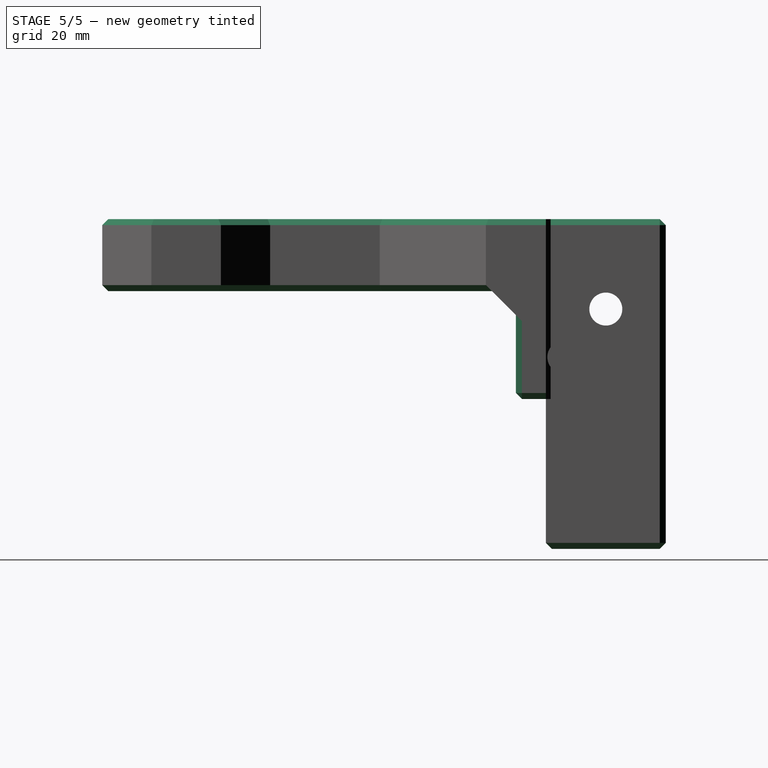
[diagram: stage 5 of 5 — right view after this stage's code; geometry added in this stage tinted green]
FEATURE [Sketcher::SketchObject] Sketch015
  AttachmentOffset = pos=(0,0,-7.7) rot=(0,0,1;0rad)
  FullyConstrained = true
  MapMode = 5
  Placement = pos=(0,0,-7.7) rot=(0,0,1;0rad)
  Support = -> [XY_Plane]
  sketch-geometry (1):
    g0: Circle CenterX=23 CenterY=0 CenterZ=0 NormalX=0 NormalY=0 NormalZ=1 AngleXU=0 Radius=6.5
  constraints (3):
    c: PointOnObject(g0,g-1)
    c: DistanceX(g-1,g0) = 23
    c: Diameter(g0) = 13
FEATURE [PartDesign::Chamfer] Chamfer
  Angle = 45
  Base = -> LinearPattern [Edge32,Edge24,Edge7,Edge13,Edge15,Edge17,Edge19,Edge21,Edge23,Edge25,Edge27,Edge55,Edge56,Edge57,Edge51,Edge52,Edge54,Edge53,Edge48,Edge49,Edge50,Edge61,Edge69,Edge68,Edge66,Edge65,Edge67,Edge64,Edge114,Edge227,Edge215,Edge113,Edge10,Edge75,Edge255,Edge253,Edge138,Edge139,Edge170,Edge254,+8 more]
  BaseFeature = -> LinearPattern
  ChamferType = 0
  FlipDirection = false
  Refine = true
  Size = 1
  Size2 = 1
  SupportTransform = false
FEATURE [PartDesign::Chamfer] Chamfer001
  Angle = 45
  Base = -> Chamfer [Edge55,Edge97]
  BaseFeature = -> Chamfer
  ChamferType = 0
  FlipDirection = false
  Refine = true
  Size = 0.4
  Size2 = 1
  SupportTransform = false
FEATURE [PartDesign::Pad] Pad001  label="3DOpti"
  BaseFeature = -> Chamfer001
  Direction = (1,1,1)
  Length = 0.2
  Length2 = 100
  Profile = -> Sketch015
  Refine = true
  Type = 0
FEATURE [PartDesign::Body] Body  label="Z-Rod_Holder_L"
  Group = -> [Sketch,Pad,Sketch001,Pocket,Sketch002,Pocket001,Sketch003,Pocket007,Sketch011,Pocket008,Hole,Sketch004,Pocket002,Sketch005,Pocket003,Sketch006,Pocket004,Sketch007,Pocket005,Sketch009,Pocket006,Sketch010,Sketch012,Pocket009,Sketch013,Sketch014,SubtractivePipe,LinearPattern,Sketch015,Chamfer,Chamfer001,Pad001]
  Origin = -> Origin
  Tip = -> Pad001
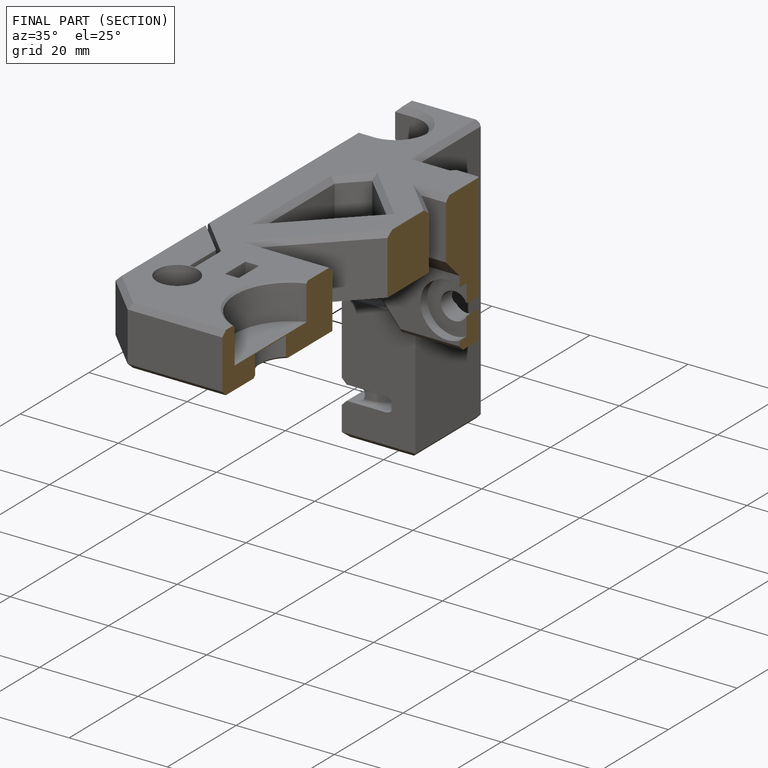
[diagram: finished part — half-section view (interior)]
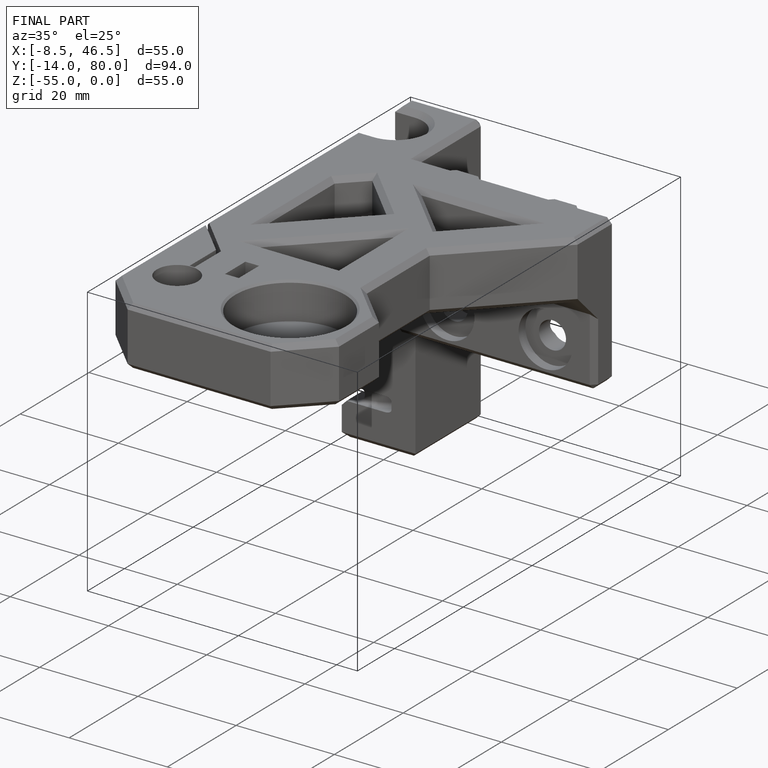
[diagram: finished part — iso view with bounding-box wireframe]
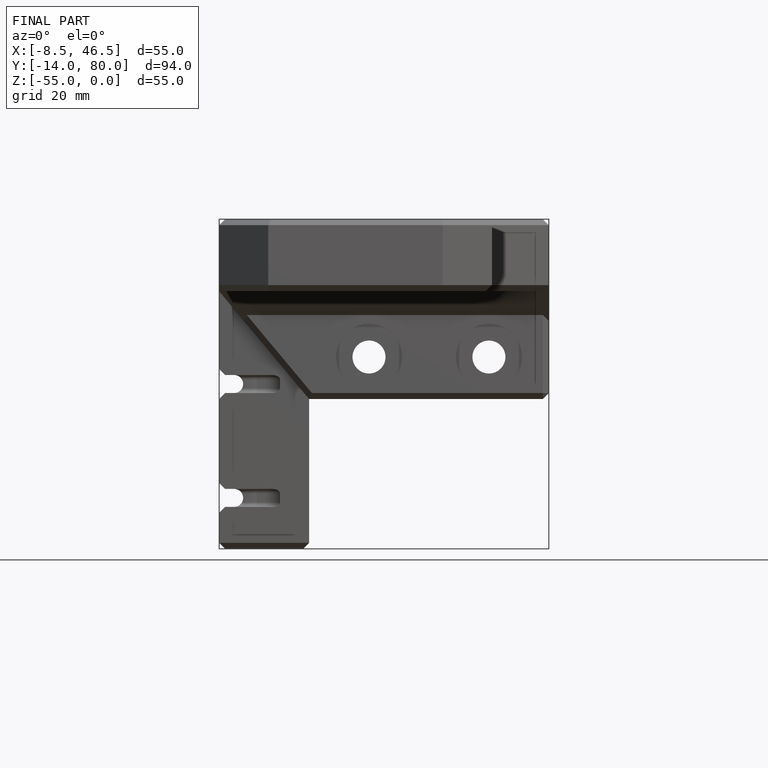
[diagram: finished part — front view with bounding-box wireframe]
